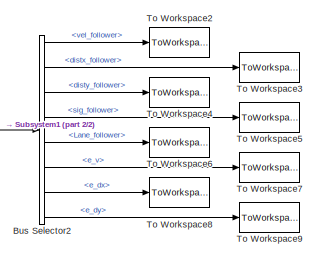
[diagram: root canvas - part 1/2, top right region]
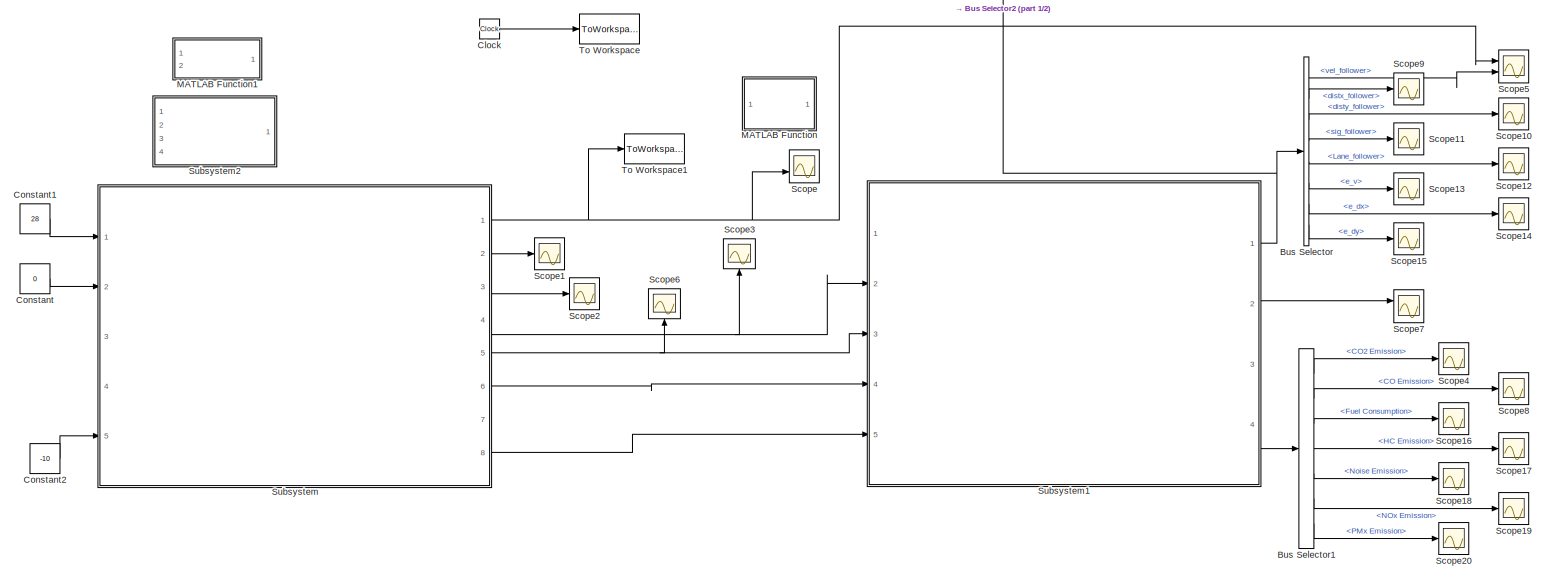
[diagram: root canvas - part 2/2, full width, middle band]
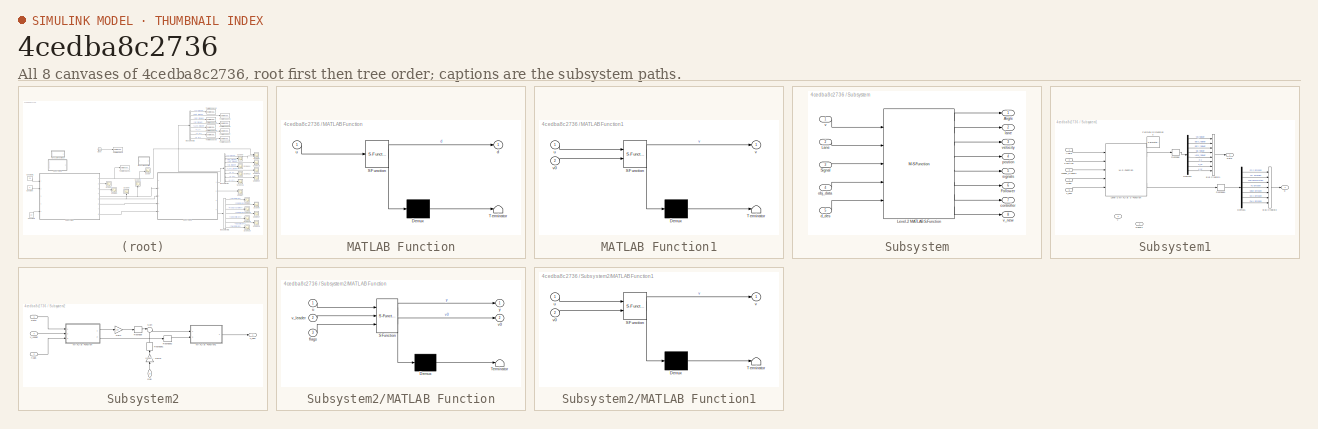
[diagram: thumbnail index - all 8 canvases of the model, root first then tree order]
MODEL slx_4cedba8c2736
KIND model
CONFIG AbsTol = auto
CONFIG EnableMultiTasking = off
CONFIG FixedStep = auto
CONFIG MaxStep = auto
CONFIG MinStep = auto
CONFIG RelTol = 1e-3
CONFIG SampleTimeConstraint = Unconstrained
CONFIG Solver = VariableStepAuto
CONFIG SolverName = VariableStepAuto
CONFIG StartTime = 0.0
CONFIG StopTime = inf
BLOCK [BusSelector] Bus Selector
  OutputAsBus = off
  OutputSignals = vel_follower,distx_follower,disty_follower,sig_follower,Lane_follower,e_v,e_dx,e_dy
  Ports = [1, 8]
BLOCK [BusSelector] Bus Selector1
  OutputAsBus = off
  OutputSignals = CO2 Emission,CO Emission,Fuel Consumption,HC Emission,Noise Emission,NOx Emission,PMx Emission
  Ports = [1, 7]
BLOCK [BusSelector] Bus Selector2
  OutputAsBus = off
  OutputSignals = vel_follower,distx_follower,disty_follower,sig_follower,Lane_follower,e_v,e_dx,e_dy
  Ports = [1, 8]
BLOCK [Clock] Clock
BLOCK [Constant] Constant
  Value = 0
BLOCK [Constant] Constant1
  Value = 28
BLOCK [Constant] Constant2
  Value = -10
BLOCK [SubSystem] MATLAB Function
  Commented = on
  ErrorFcn = Stateflow.Translate.translate
  PermitHierarchicalResolution = ExplicitOnly
  Ports = [1, 1]
  RequestExecContextInheritance = off
  SFBlockType = MATLAB Function
  TreatAsAtomicUnit = on
BLOCK [Demux] MATLAB Function/ Demux 
  Outputs = 1
  Ports = [1, 1]
BLOCK [S-Function] MATLAB Function/ SFunction 
  EnableBusSupport = on
  FunctionName = sf_sfun
  PortCounts = [1 2]
  Ports = [1, 2]
  SFcnIsStateOwnerBlock = off
  SFunctionDeploymentMode = off
  Tag = Stateflow S-Function Simulink_Platoon 4
BLOCK [Terminator] MATLAB Function/ Terminator 
BLOCK [Outport] MATLAB Function/d
  IconDisplay = Port number
BLOCK [Inport] MATLAB Function/u
  IconDisplay = Port number
BLOCK [SubSystem] MATLAB Function1
  Commented = on
  ErrorFcn = Stateflow.Translate.translate
  PermitHierarchicalResolution = ExplicitOnly
  Ports = [2, 1]
  RequestExecContextInheritance = off
  SFBlockType = MATLAB Function
  TreatAsAtomicUnit = on
BLOCK [Demux] MATLAB Function1/ Demux 
  Outputs = 1
  Ports = [1, 1]
BLOCK [S-Function] MATLAB Function1/ SFunction 
  EnableBusSupport = on
  FunctionName = sf_sfun
  Parameters = SumoTs
  PortCounts = [2 2]
  Ports = [2, 2]
  SFcnIsStateOwnerBlock = off
  SFunctionDeploymentMode = off
  Tag = Stateflow S-Function Simulink_Platoon 3
BLOCK [Terminator] MATLAB Function1/ Terminator 
BLOCK [Inport] MATLAB Function1/u
  IconDisplay = Port number
BLOCK [Outport] MATLAB Function1/v
  IconDisplay = Port number
BLOCK [Inport] MATLAB Function1/v0
  IconDisplay = Port number
  Port = 2
BLOCK [Scope] Scope
  Commented = on
  Floating = off
  NumInputPorts = 2
  Ports = [2]
  ScopeSpecificationString = Simulink.scopes.TimeScopeBlockCfg('CurrentConfiguration', extmgr.ConfigurationSet(extmgr.Configuration('Core','General UI',true),extmgr.Configuration('Core','Source UI',true),extmgr.Configuration('Sources','WiredSimulink',true),extmgr.Configuration('Visuals','Time Domain',true,'SerializedDisplays',{struct('MinYLimReal','-44.37518','MaxYLimReal','399.37661','YLabelReal','','MinYLimMag','0.00000','M...<+1385ch>
BLOCK [Scope] Scope1
  Floating = off
  NumInputPorts = 1
  Ports = [1]
  ScopeSpecificationString = Simulink.scopes.TimeScopeBlockCfg('CurrentConfiguration', extmgr.ConfigurationSet(extmgr.Configuration('Core','General UI',true),extmgr.Configuration('Core','Source UI',true),extmgr.Configuration('Sources','WiredSimulink',true,'DataLoggingVariableName','ScopeData1'),extmgr.Configuration('Visuals','Time Domain',true,'SerializedDisplays',{struct('MinYLimReal','-1.00000','MaxYLimReal','1.00000','YLab...<+1395ch>
BLOCK [Scope] Scope10
  Floating = off
  NumInputPorts = 1
  Ports = [1]
  ScopeSpecificationString = Simulink.scopes.TimeScopeBlockCfg('CurrentConfiguration', extmgr.ConfigurationSet(extmgr.Configuration('Core','General UI',true),extmgr.Configuration('Core','Source UI',true),extmgr.Configuration('Sources','WiredSimulink',true,'DataLoggingVariableName','ScopeData3'),extmgr.Configuration('Visuals','Time Domain',true,'SerializedDisplays',{struct('MinYLimReal','-0.4','MaxYLimReal','3.6','YLabelReal',...<+1588ch>
BLOCK [Scope] Scope11
  Floating = off
  NumInputPorts = 1
  Ports = [1]
  ScopeSpecificationString = Simulink.scopes.TimeScopeBlockCfg('CurrentConfiguration', extmgr.ConfigurationSet(extmgr.Configuration('Core','General UI',true),extmgr.Configuration('Core','Source UI',true),extmgr.Configuration('Sources','WiredSimulink',true,'DataLoggingVariableName','ScopeData4'),extmgr.Configuration('Visuals','Time Domain',true,'SerializedDisplays',{struct('MinYLimReal','-0.125','MaxYLimReal','1.125','YLabelRe...<+1609ch>
BLOCK [Scope] Scope12
  Floating = off
  NumInputPorts = 1
  Ports = [1]
  ScopeSpecificationString = Simulink.scopes.TimeScopeBlockCfg('CurrentConfiguration', extmgr.ConfigurationSet(extmgr.Configuration('Core','General UI',true),extmgr.Configuration('Core','Source UI',true),extmgr.Configuration('Sources','WiredSimulink',true,'DataLoggingVariableName','ScopeData5'),extmgr.Configuration('Visuals','Time Domain',true,'SerializedDisplays',{struct('MinYLimReal','-529.2625','MaxYLimReal','4763.3625','Y...<+1642ch>
BLOCK [Scope] Scope13
  Floating = off
  NumInputPorts = 1
  Ports = [1]
  ScopeSpecificationString = Simulink.scopes.TimeScopeBlockCfg('CurrentConfiguration', extmgr.ConfigurationSet(extmgr.Configuration('Core','General UI',true),extmgr.Configuration('Core','Source UI',true),extmgr.Configuration('Sources','WiredSimulink',true,'DataLoggingVariableName','ScopeData6'),extmgr.Configuration('Visuals','Time Domain',true,'SerializedDisplays',{struct('MinYLimReal','-10.1369','MaxYLimReal','8.37319','YLab...<+1502ch>
BLOCK [Scope] Scope14
  Floating = off
  NumInputPorts = 1
  Ports = [1]
  ScopeSpecificationString = Simulink.scopes.TimeScopeBlockCfg('CurrentConfiguration', extmgr.ConfigurationSet(extmgr.Configuration('Core','General UI',true),extmgr.Configuration('Core','Source UI',true),extmgr.Configuration('Sources','WiredSimulink',true,'DataLoggingVariableName','ScopeData7'),extmgr.Configuration('Visuals','Time Domain',true,'SerializedDisplays',{struct('MinYLimReal','-107.12207','MaxYLimReal','16.51851','Y...<+1551ch>
BLOCK [Scope] Scope15
  Floating = off
  NumInputPorts = 1
  Ports = [1]
  ScopeSpecificationString = Simulink.scopes.TimeScopeBlockCfg('CurrentConfiguration', extmgr.ConfigurationSet(extmgr.Configuration('Core','General UI',true),extmgr.Configuration('Core','Source UI',true),extmgr.Configuration('Sources','WiredSimulink',true,'DataLoggingVariableName','ScopeData8'),extmgr.Configuration('Visuals','Time Domain',true,'SerializedDisplays',{struct('MinYLimReal','-8.4167','MaxYLimReal','23.77684','YLab...<+1514ch>
BLOCK [Scope] Scope16
  Floating = off
  NumInputPorts = 1
  Ports = [1]
  ScopeSpecificationString = Simulink.scopes.TimeScopeBlockCfg('CurrentConfiguration', extmgr.ConfigurationSet(extmgr.Configuration('Core','General UI',true),extmgr.Configuration('Core','Source UI',true),extmgr.Configuration('Sources','WiredSimulink',true,'DataLoggingVariableName','ScopeData3'),extmgr.Configuration('Visuals','Time Domain',true,'SerializedDisplays',{struct('MinYLimReal','-1.00000','MaxYLimReal','1.00000','YLab...<+1613ch>
BLOCK [Scope] Scope17
  Floating = off
  NumInputPorts = 1
  Ports = [1]
  ScopeSpecificationString = Simulink.scopes.TimeScopeBlockCfg('CurrentConfiguration', extmgr.ConfigurationSet(extmgr.Configuration('Core','General UI',true),extmgr.Configuration('Core','Source UI',true),extmgr.Configuration('Sources','WiredSimulink',true,'DataLoggingVariableName','ScopeData4'),extmgr.Configuration('Visuals','Time Domain',true,'SerializedDisplays',{struct('MinYLimReal','-0.48494','MaxYLimReal','4.36449','YLab...<+1582ch>
BLOCK [Scope] Scope18
  Floating = off
  NumInputPorts = 1
  Ports = [1]
  ScopeSpecificationString = Simulink.scopes.TimeScopeBlockCfg('CurrentConfiguration', extmgr.ConfigurationSet(extmgr.Configuration('Core','General UI',true),extmgr.Configuration('Core','Source UI',true),extmgr.Configuration('Sources','WiredSimulink',true,'DataLoggingVariableName','ScopeData5'),extmgr.Configuration('Visuals','Time Domain',true,'SerializedDisplays',{struct('MinYLimReal','-1.00000','MaxYLimReal','1.00000','YLab...<+1593ch>
BLOCK [Scope] Scope19
  Floating = off
  NumInputPorts = 1
  Ports = [1]
  ScopeSpecificationString = Simulink.scopes.TimeScopeBlockCfg('CurrentConfiguration', extmgr.ConfigurationSet(extmgr.Configuration('Core','General UI',true),extmgr.Configuration('Core','Source UI',true),extmgr.Configuration('Sources','WiredSimulink',true,'DataLoggingVariableName','ScopeData6'),extmgr.Configuration('Visuals','Time Domain',true,'SerializedDisplays',{struct('MinYLimReal','-1.92077','MaxYLimReal','17.28696','YLa...<+1824ch>
BLOCK [Scope] Scope2
  Commented = on
  Floating = off
  NumInputPorts = 1
  Ports = [1]
  ScopeSpecificationString = Simulink.scopes.TimeScopeBlockCfg('CurrentConfiguration', extmgr.ConfigurationSet(extmgr.Configuration('Core','General UI',true),extmgr.Configuration('Core','Source UI',true),extmgr.Configuration('Sources','WiredSimulink',true,'DataLoggingVariableName','ScopeData2'),extmgr.Configuration('Visuals','Time Domain',true,'SerializedDisplays',{struct('MinYLimReal','-2.2788','MaxYLimReal','20.50921','YLab...<+1397ch>
BLOCK [Scope] Scope20
  Floating = off
  NumInputPorts = 1
  Ports = [1]
  ScopeSpecificationString = Simulink.scopes.TimeScopeBlockCfg('CurrentConfiguration', extmgr.ConfigurationSet(extmgr.Configuration('Core','General UI',true),extmgr.Configuration('Core','Source UI',true),extmgr.Configuration('Sources','WiredSimulink',true,'DataLoggingVariableName','ScopeData7'),extmgr.Configuration('Visuals','Time Domain',true,'SerializedDisplays',{struct('MinYLimReal','-1.00000','MaxYLimReal','1.00000','YLab...<+1573ch>
BLOCK [Scope] Scope3
  Commented = on
  Floating = off
  NumInputPorts = 1
  Ports = [1]
  ScopeSpecificationString = Simulink.scopes.TimeScopeBlockCfg('CurrentConfiguration', extmgr.ConfigurationSet(extmgr.Configuration('Core','General UI',true),extmgr.Configuration('Core','Source UI',true),extmgr.Configuration('Sources','WiredSimulink',true,'DataLoggingVariableName','ScopeData3'),extmgr.Configuration('Visuals','Time Domain',true,'SerializedDisplays',{struct('MinYLimReal','-81.48854','MaxYLimReal','701.3969','YL...<+1419ch>
BLOCK [Scope] Scope4
  Floating = off
  NumInputPorts = 1
  Ports = [1]
  ScopeSpecificationString = Simulink.scopes.TimeScopeBlockCfg('CurrentConfiguration', extmgr.ConfigurationSet(extmgr.Configuration('Core','General UI',true),extmgr.Configuration('Core','Source UI',true),extmgr.Configuration('Sources','WiredSimulink',true,'DataLoggingVariableName','ScopeData1'),extmgr.Configuration('Visuals','Time Domain',true,'SerializedDisplays',{struct('MinYLimReal','-1.00000','MaxYLimReal','1.00000','YLab...<+1600ch>
BLOCK [Scope] Scope5
  Floating = off
  NumInputPorts = 2
  Ports = [2]
  ScopeSpecificationString = Simulink.scopes.TimeScopeBlockCfg('CurrentConfiguration', extmgr.ConfigurationSet(extmgr.Configuration('Core','General UI',true),extmgr.Configuration('Core','Source UI',true),extmgr.Configuration('Sources','WiredSimulink',true,'DataLoggingVariableName','ScopeData1'),extmgr.Configuration('Visuals','Time Domain',true,'SerializedDisplays',{struct('MinYLimReal','-4.375','MaxYLimReal','39.375','YLabelR...<+1875ch>
BLOCK [Scope] Scope6
  Commented = on
  Floating = off
  NumInputPorts = 1
  Ports = [1]
  ScopeSpecificationString = Simulink.scopes.TimeScopeBlockCfg('CurrentConfiguration', extmgr.ConfigurationSet(extmgr.Configuration('Core','General UI',true),extmgr.Configuration('Core','Source UI',true),extmgr.Configuration('Sources','WiredSimulink',true,'DataLoggingVariableName','ScopeData1'),extmgr.Configuration('Visuals','Time Domain',true,'SerializedDisplays',{struct('MinYLimReal','-0.375','MaxYLimReal','3.375','YLabelRe...<+1529ch>
BLOCK [Scope] Scope7
  Commented = on
  Floating = off
  NumInputPorts = 2
  Ports = [2]
  ScopeSpecificationString = Simulink.scopes.TimeScopeBlockCfg('CurrentConfiguration', extmgr.ConfigurationSet(extmgr.Configuration('Core','General UI',true),extmgr.Configuration('Core','Source UI',true),extmgr.Configuration('Sources','WiredSimulink',true,'DataLoggingVariableName','ScopeData7'),extmgr.Configuration('Visuals','Time Domain',true,'SerializedDisplays',{struct('MinYLimReal','-0.25','MaxYLimReal','2.25','YLabelReal...<+1862ch>
BLOCK [Scope] Scope8
  Floating = off
  NumInputPorts = 1
  Ports = [1]
  ScopeSpecificationString = Simulink.scopes.TimeScopeBlockCfg('CurrentConfiguration', extmgr.ConfigurationSet(extmgr.Configuration('Core','General UI',true),extmgr.Configuration('Core','Source UI',true),extmgr.Configuration('Sources','WiredSimulink',true,'DataLoggingVariableName','ScopeData2'),extmgr.Configuration('Visuals','Time Domain',true,'SerializedDisplays',{struct('MinYLimReal','-1.00000','MaxYLimReal','1.00000','YLab...<+1563ch>
BLOCK [Scope] Scope9
  Floating = off
  NumInputPorts = 1
  Ports = [1]
  ScopeSpecificationString = Simulink.scopes.TimeScopeBlockCfg('CurrentConfiguration', extmgr.ConfigurationSet(extmgr.Configuration('Core','General UI',true),extmgr.Configuration('Core','Source UI',true),extmgr.Configuration('Sources','WiredSimulink',true,'DataLoggingVariableName','ScopeData2'),extmgr.Configuration('Visuals','Time Domain',true,'SerializedDisplays',{struct('MinYLimReal','-223.47778','MaxYLimReal','71.52588','Y...<+1651ch>
BLOCK [SubSystem] Subsystem
  Ports = [5, 8]
  RequestExecContextInheritance = off
BLOCK [Outport] Subsystem/Angle
  IconDisplay = Port number
BLOCK [Outport] Subsystem/Follower
  IconDisplay = Port number
  Port = 6
BLOCK [Inport] Subsystem/Lane
  IconDisplay = Port number
  Port = 2
BLOCK [M-S-Function] Subsystem/Level-2 MATLAB S-Function
  FunctionName = LeaderBlock
  Parameters = SumoTs,EgoName,NumVehicles,SumoCfg,SumoIP,SumoPort,SumoGui,SumoOptions,NumTLights,SensorRange,kT,V
  Ports = [5, 8]
BLOCK [Inport] Subsystem/Signal
  IconDisplay = Port number
  Port = 3
BLOCK [Outport] Subsystem/controller
  IconDisplay = Port number
  Port = 7
BLOCK [Inport] Subsystem/d_des
  IconDisplay = Port number
  Port = 5
BLOCK [Outport] Subsystem/lane
  IconDisplay = Port number
  Port = 2
BLOCK [Inport] Subsystem/obj_data
  IconDisplay = Port number
  Port = 4
BLOCK [Outport] Subsystem/postion
  IconDisplay = Port number
  Port = 4
BLOCK [Outport] Subsystem/signals
  IconDisplay = Port number
  Port = 5
BLOCK [Inport] Subsystem/v
  IconDisplay = Port number
BLOCK [Outport] Subsystem/v_new
  IconDisplay = Port number
  Port = 8
BLOCK [Outport] Subsystem/velocity
  IconDisplay = Port number
  Port = 3
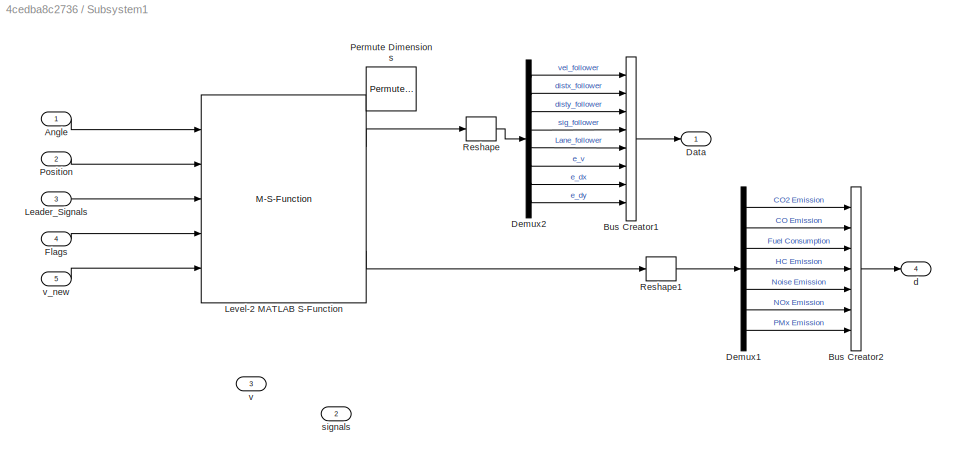
BLOCK [SubSystem] Subsystem1
  Ports = [5, 4]
  RequestExecContextInheritance = off
BLOCK [Inport] Subsystem1/Angle
  IconDisplay = Port number
BLOCK [BusCreator] Subsystem1/Bus Creator1
  DisplayOption = bar
  InheritFromInputs = on
  Inputs = 8
  Ports = [8, 1]
BLOCK [BusCreator] Subsystem1/Bus Creator2
  DisplayOption = bar
  InheritFromInputs = on
  Inputs = 7
  Ports = [7, 1]
BLOCK [Outport] Subsystem1/Data
  IconDisplay = Port number
BLOCK [Demux] Subsystem1/Demux1
  DisplayOption = bar
  Outputs = [-1,-1,-1,-1,-1,-1,-1]
  Ports = [1, 7]
BLOCK [Demux] Subsystem1/Demux2
  DisplayOption = bar
  Outputs = [-1,-1,-1,-1,-1,-1,-1,-1]
  Ports = [1, 8]
BLOCK [Inport] Subsystem1/Flags
  IconDisplay = Port number
  Port = 4
BLOCK [Inport] Subsystem1/Leader_Signals
  IconDisplay = Port number
  Port = 3
BLOCK [M-S-Function] Subsystem1/Level-2 MATLAB S-Function
  FunctionName = ObjectBlock
  Parameters = SumoTs,EgoName,NumVehicles,SumoCfg,SumoIP,SumoPort,SumoGui,SumoOptions,NumTLights,SensorRange
  Ports = [5, 3]
BLOCK [PermuteDimensions] Subsystem1/Permute Dimensions
  Commented = on
BLOCK [Inport] Subsystem1/Position
  IconDisplay = Port number
  Port = 2
BLOCK [Reshape] Subsystem1/Reshape
  Ports = [1, 1]
BLOCK [Reshape] Subsystem1/Reshape1
  Ports = [1, 1]
BLOCK [Outport] Subsystem1/d
  IconDisplay = Port number
  Port = 4
BLOCK [Outport] Subsystem1/signals
  IconDisplay = Port number
  Port = 2
BLOCK [Outport] Subsystem1/v
  IconDisplay = Port number
  Port = 3
BLOCK [Inport] Subsystem1/v_new
  IconDisplay = Port number
  Port = 5
BLOCK [SubSystem] Subsystem2
  Commented = on
  Ports = [4, 1]
  RequestExecContextInheritance = off
BLOCK [Inport] Subsystem2/Data
  IconDisplay = Port number
BLOCK [Gain] Subsystem2/Gain
  Gain = kT
  Multiplication = Matrix(K*u)
  OutDataTypeStr = Inherit: Inherit via internal rule
  ParamDataTypeStr = Inherit: Inherit via internal rule
  SaturateOnIntegerOverflow = off
BLOCK [Gain] Subsystem2/Gain1
  Gain = V*ones(NumVehicles,1)
  OutDataTypeStr = Inherit: Inherit via internal rule
  ParamDataTypeStr = Inherit: Inherit via internal rule
  SaturateOnIntegerOverflow = off
BLOCK [Inport] Subsystem2/Gap
  IconDisplay = Port number
  Port = 3
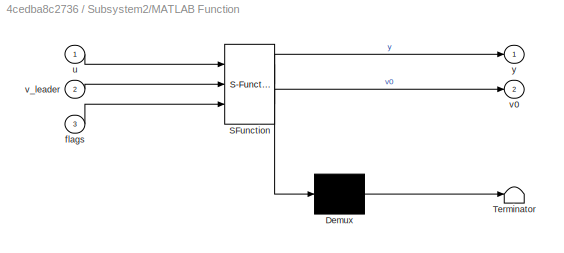
BLOCK [SubSystem] Subsystem2/MATLAB Function
  ErrorFcn = Stateflow.Translate.translate
  PermitHierarchicalResolution = ExplicitOnly
  Ports = [3, 2]
  RequestExecContextInheritance = off
  SFBlockType = MATLAB Function
  TreatAsAtomicUnit = on
BLOCK [Demux] Subsystem2/MATLAB Function/ Demux 
  Outputs = 1
  Ports = [1, 1]
BLOCK [S-Function] Subsystem2/MATLAB Function/ SFunction 
  EnableBusSupport = on
  FunctionName = sf_sfun
  PortCounts = [3 3]
  Ports = [3, 3]
  SFcnIsStateOwnerBlock = off
  SFunctionDeploymentMode = off
  Tag = Stateflow S-Function Simulink_Platoon 2
BLOCK [Terminator] Subsystem2/MATLAB Function/ Terminator 
BLOCK [Inport] Subsystem2/MATLAB Function/flags
  IconDisplay = Port number
  Port = 3
BLOCK [Inport] Subsystem2/MATLAB Function/u
  IconDisplay = Port number
BLOCK [Outport] Subsystem2/MATLAB Function/v0
  IconDisplay = Port number
  Port = 2
BLOCK [Inport] Subsystem2/MATLAB Function/v_leader
  IconDisplay = Port number
  Port = 2
BLOCK [Outport] Subsystem2/MATLAB Function/y
  IconDisplay = Port number
BLOCK [SubSystem] Subsystem2/MATLAB Function1
  ErrorFcn = Stateflow.Translate.translate
  PermitHierarchicalResolution = ExplicitOnly
  Ports = [2, 1]
  RequestExecContextInheritance = off
  SFBlockType = MATLAB Function
  TreatAsAtomicUnit = on
BLOCK [Demux] Subsystem2/MATLAB Function1/ Demux 
  Outputs = 1
  Ports = [1, 1]
BLOCK [S-Function] Subsystem2/MATLAB Function1/ SFunction 
  EnableBusSupport = on
  FunctionName = sf_sfun
  Parameters = SumoTs
  PortCounts = [2 2]
  Ports = [2, 2]
  SFcnIsStateOwnerBlock = off
  SFunctionDeploymentMode = off
  Tag = Stateflow S-Function Simulink_Platoon 1
BLOCK [Terminator] Subsystem2/MATLAB Function1/ Terminator 
BLOCK [Inport] Subsystem2/MATLAB Function1/u
  IconDisplay = Port number
BLOCK [Outport] Subsystem2/MATLAB Function1/v
  IconDisplay = Port number
BLOCK [Inport] Subsystem2/MATLAB Function1/v0
  IconDisplay = Port number
  Port = 2
BLOCK [Reshape] Subsystem2/Reshape
  Ports = [1, 1]
BLOCK [Reshape] Subsystem2/Reshape1
  Ports = [1, 1]
BLOCK [Reshape] Subsystem2/Reshape2
  Ports = [1, 1]
BLOCK [Sum] Subsystem2/Sum
  IconShape = round
  InputSameDT = off
  Inputs = |-+
  OutDataTypeStr = Inherit: Inherit via internal rule
  Ports = [2, 1]
  SaturateOnIntegerOverflow = off
BLOCK [Inport] Subsystem2/flags
  IconDisplay = Port number
  Port = 2
BLOCK [Inport] Subsystem2/v_leader
  IconDisplay = Port number
  Port = 4
BLOCK [Outport] Subsystem2/v_new
  IconDisplay = Port number
BLOCK [ToWorkspace] To Workspace
  FixptAsFi = on
  MaxDataPoints = inf
  Ports = [1]
  SampleTime = SumoTs
  Save2DSignal = 3-D array (concatenate along third dimension)
  VariableName = t
BLOCK [ToWorkspace] To Workspace1
  FixptAsFi = on
  MaxDataPoints = inf
  Ports = [1]
  SampleTime = -1
  Save2DSignal = 3-D array (concatenate along third dimension)
  VariableName = v_Leader
BLOCK [ToWorkspace] To Workspace2
  FixptAsFi = on
  MaxDataPoints = inf
  Ports = [1]
  SampleTime = SumoTs
  Save2DSignal = 3-D array (concatenate along third dimension)
  VariableName = v_follower
BLOCK [ToWorkspace] To Workspace3
  FixptAsFi = on
  MaxDataPoints = inf
  Ports = [1]
  SampleTime = SumoTs
  Save2DSignal = 3-D array (concatenate along third dimension)
  VariableName = dx_follower
BLOCK [ToWorkspace] To Workspace4
  FixptAsFi = on
  MaxDataPoints = inf
  Ports = [1]
  SampleTime = SumoTs
  Save2DSignal = 3-D array (concatenate along third dimension)
  VariableName = dy_follower
BLOCK [ToWorkspace] To Workspace5
  FixptAsFi = on
  MaxDataPoints = inf
  Ports = [1]
  SampleTime = SumoTs
  Save2DSignal = 3-D array (concatenate along third dimension)
  VariableName = signal_follower
BLOCK [ToWorkspace] To Workspace6
  FixptAsFi = on
  MaxDataPoints = inf
  Ports = [1]
  SampleTime = SumoTs
  Save2DSignal = 3-D array (concatenate along third dimension)
  VariableName = lane_follower
BLOCK [ToWorkspace] To Workspace7
  FixptAsFi = on
  MaxDataPoints = inf
  Ports = [1]
  SampleTime = SumoTs
  Save2DSignal = 3-D array (concatenate along third dimension)
  VariableName = e_v
BLOCK [ToWorkspace] To Workspace8
  FixptAsFi = on
  MaxDataPoints = inf
  Ports = [1]
  SampleTime = SumoTs
  Save2DSignal = 3-D array (concatenate along third dimension)
  VariableName = e_dx
BLOCK [ToWorkspace] To Workspace9
  FixptAsFi = on
  MaxDataPoints = inf
  Ports = [1]
  SampleTime = SumoTs
  Save2DSignal = 3-D array (concatenate along third dimension)
  VariableName = e_dy
LINE Bus Selector1:1 -> Scope4:1
LINE Bus Selector1:2 -> Scope8:1
LINE Bus Selector1:3 -> Scope16:1
LINE Bus Selector1:4 -> Scope17:1
LINE Bus Selector1:5 -> Scope18:1
LINE Bus Selector1:6 -> Scope19:1
LINE Bus Selector1:7 -> Scope20:1
LINE Bus Selector2:1 -> To Workspace2:1
LINE Bus Selector2:2 -> To Workspace3:1
LINE Bus Selector2:3 -> To Workspace4:1
LINE Bus Selector2:4 -> To Workspace5:1
LINE Bus Selector2:5 -> To Workspace6:1
LINE Bus Selector2:6 -> To Workspace7:1
LINE Bus Selector2:7 -> To Workspace8:1
LINE Bus Selector2:8 -> To Workspace9:1
LINE Bus Selector:1 -> Scope5:2
LINE Bus Selector:2 -> Scope9:1
LINE Bus Selector:3 -> Scope10:1
LINE Bus Selector:4 -> Scope11:1
LINE Bus Selector:5 -> Scope12:1
LINE Bus Selector:6 -> Scope13:1
LINE Bus Selector:7 -> Scope14:1
LINE Bus Selector:8 -> Scope15:1
LINE Clock:1 -> To Workspace:1
LINE Constant1:1 -> Subsystem:1
LINE Constant2:1 -> Subsystem:5
LINE Constant:1 -> Subsystem:2
LINE Subsystem/Lane:1 -> Subsystem/Level-2 MATLAB S-Function:2
LINE Subsystem/Level-2 MATLAB S-Function:1 -> Subsystem/Angle:1
LINE Subsystem/Level-2 MATLAB S-Function:2 -> Subsystem/lane:1
LINE Subsystem/Level-2 MATLAB S-Function:3 -> Subsystem/velocity:1
LINE Subsystem/Level-2 MATLAB S-Function:4 -> Subsystem/postion:1
LINE Subsystem/Level-2 MATLAB S-Function:5 -> Subsystem/signals:1
LINE Subsystem/Level-2 MATLAB S-Function:6 -> Subsystem/Follower:1
LINE Subsystem/Level-2 MATLAB S-Function:7 -> Subsystem/controller:1
LINE Subsystem/Level-2 MATLAB S-Function:8 -> Subsystem/v_new:1
LINE Subsystem/Signal:1 -> Subsystem/Level-2 MATLAB S-Function:3
LINE Subsystem/d_des:1 -> Subsystem/Level-2 MATLAB S-Function:5
LINE Subsystem/obj_data:1 -> Subsystem/Level-2 MATLAB S-Function:4
LINE Subsystem/v:1 -> Subsystem/Level-2 MATLAB S-Function:1
LINE Subsystem1/Angle:1 -> Subsystem1/Level-2 MATLAB S-Function:1
LINE Subsystem1/Bus Creator1:1 -> Subsystem1/Data:1
LINE Subsystem1/Bus Creator2:1 -> Subsystem1/d:1
LINE Subsystem1/Demux1:1 -> Subsystem1/Bus Creator2:1
LINE Subsystem1/Demux1:2 -> Subsystem1/Bus Creator2:2
LINE Subsystem1/Demux1:3 -> Subsystem1/Bus Creator2:3
LINE Subsystem1/Demux1:4 -> Subsystem1/Bus Creator2:4
LINE Subsystem1/Demux1:5 -> Subsystem1/Bus Creator2:5
LINE Subsystem1/Demux1:6 -> Subsystem1/Bus Creator2:6
LINE Subsystem1/Demux1:7 -> Subsystem1/Bus Creator2:7
LINE Subsystem1/Demux2:1 -> Subsystem1/Bus Creator1:1
LINE Subsystem1/Demux2:2 -> Subsystem1/Bus Creator1:2
LINE Subsystem1/Demux2:3 -> Subsystem1/Bus Creator1:3
LINE Subsystem1/Demux2:4 -> Subsystem1/Bus Creator1:4
LINE Subsystem1/Demux2:5 -> Subsystem1/Bus Creator1:5
LINE Subsystem1/Demux2:6 -> Subsystem1/Bus Creator1:6
LINE Subsystem1/Demux2:7 -> Subsystem1/Bus Creator1:7
LINE Subsystem1/Demux2:8 -> Subsystem1/Bus Creator1:8
LINE Subsystem1/Flags:1 -> Subsystem1/Level-2 MATLAB S-Function:4
LINE Subsystem1/Leader_Signals:1 -> Subsystem1/Level-2 MATLAB S-Function:3
LINE Subsystem1/Level-2 MATLAB S-Function:1 -> Subsystem1/Reshape:1
LINE Subsystem1/Level-2 MATLAB S-Function:3 -> Subsystem1/Reshape1:1
LINE Subsystem1/Position:1 -> Subsystem1/Level-2 MATLAB S-Function:2
LINE Subsystem1/Reshape1:1 -> Subsystem1/Demux1:1
LINE Subsystem1/Reshape:1 -> Subsystem1/Demux2:1
LINE Subsystem1/v_new:1 -> Subsystem1/Level-2 MATLAB S-Function:5
NET Subsystem1:1 -> Bus Selector2:1, Bus Selector:1
LINE Subsystem1:2 -> Scope7:1
LINE Subsystem1:4 -> Bus Selector1:1
LINE Subsystem2/Data:1 -> Subsystem2/MATLAB Function:1
LINE Subsystem2/Gain1:1 -> Subsystem2/Reshape1:1
LINE Subsystem2/Gain:1 -> Subsystem2/Reshape:1
LINE Subsystem2/Gap:1 -> Subsystem2/Gain1:1
LINE Subsystem2/MATLAB Function1:1 -> Subsystem2/v_new:1
LINE Subsystem2/MATLAB Function:1 -> Subsystem2/Gain:1
LINE Subsystem2/MATLAB Function:2 -> Subsystem2/Reshape2:1
LINE Subsystem2/Reshape1:1 -> Subsystem2/Sum:2
LINE Subsystem2/Reshape2:1 -> Subsystem2/MATLAB Function1:2
LINE Subsystem2/Reshape:1 -> Subsystem2/Sum:1
LINE Subsystem2/Sum:1 -> Subsystem2/MATLAB Function1:1
LINE Subsystem2/flags:1 -> Subsystem2/MATLAB Function:3
LINE Subsystem2/v_leader:1 -> Subsystem2/MATLAB Function:2
NET Subsystem:1 -> Scope5:1, Scope:2, To Workspace1:1
LINE Subsystem:2 -> Scope1:1
LINE Subsystem:3 -> Scope2:1
NET Subsystem:4 -> Scope3:1, Subsystem1:2
NET Subsystem:5 -> Scope6:1, Subsystem1:3
LINE Subsystem:6 -> Subsystem1:4
LINE Subsystem:8 -> Subsystem1:5
note: NET lines group one-source signal fan-out (src -> all destinations, sorted); 1:1 wires keep LINE
CHART Subsystem2/MATLAB Function1 states=1 transitions=1
  STATE_LABEL 'eML_blk_kernel()'
  STATE_LABEL 'SCRIPT:\nfunction v = fcn(u,v0,SumoTs)\n\nv = u*SumoTs + v0;\n'
CHART Subsystem2/MATLAB Function states=1 transitions=1
  STATE_LABEL 'eML_blk_kernel()'
  STATE_LABEL 'SCRIPT:\nfunction [y,v0] = fcn(u,v_leader,flags)\n\nv  = u(1,:);\ndx = u(2,:);\ndy = u(3,:);\n\nedx = zeros(length(v),1);\nedy = zeros(length(v),1);\nev  = zeros(length(v),1);\ned  = zeros(length(v),1);\n\n% v0 = zeros(1,NumVehicles);\n% y  = zeros(2,NumVehicles);\n\nidx = find(flags);\nif ~isempty(idx)\n    d = sqrt(dx(idx).^2 + dy(idx).^2);\n    [dist,sortIdx] = sort(d);\n    temp = idx(sortIdx);\n    switch length...<+633ch>'
CHART MATLAB Function1 states=1 transitions=1
  STATE_LABEL 'eML_blk_kernel()'
  STATE_LABEL 'SCRIPT:\nfunction v = fcn(u,v0,SumoTs)\n\nv = u*SumoTs + v0;\n'
CHART MATLAB Function states=1 transitions=1
  STATE_LABEL 'eML_blk_kernel()'
  STATE_LABEL 'SCRIPT:\nfunction d  = fcn(u)\n\nv  = u(1,:);\ndx = u(2,:);\ndy = u(3,:);\n\nd = -sqrt(dx.^2+dy.^2);\n'
